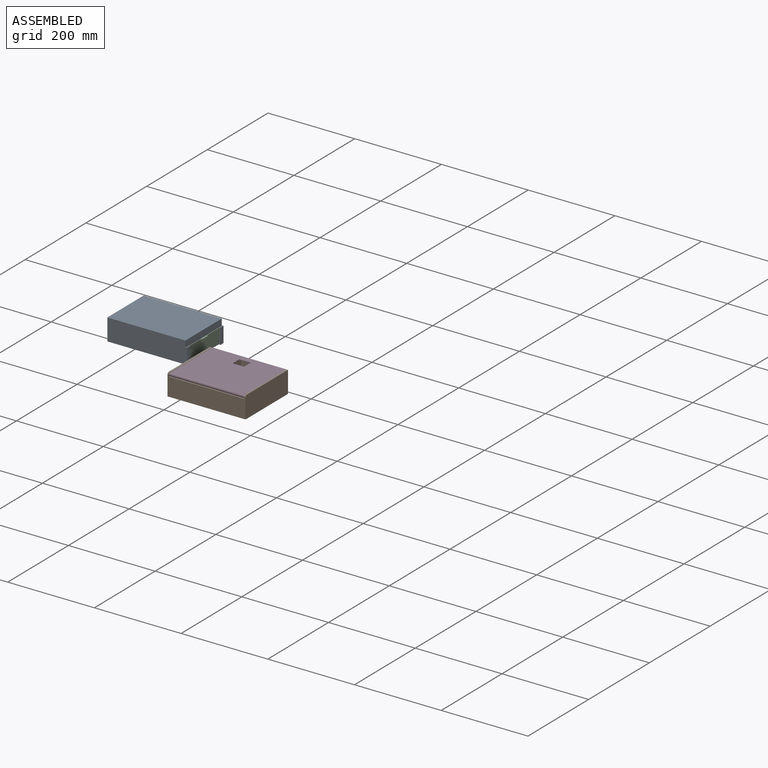
[diagram: assembled view]
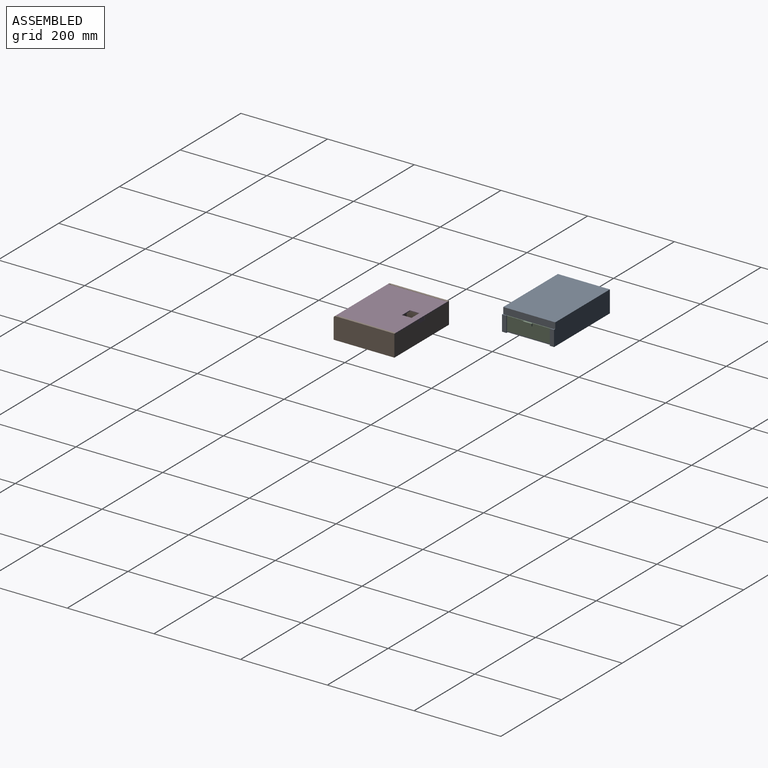
[diagram: assembled view, second angle]
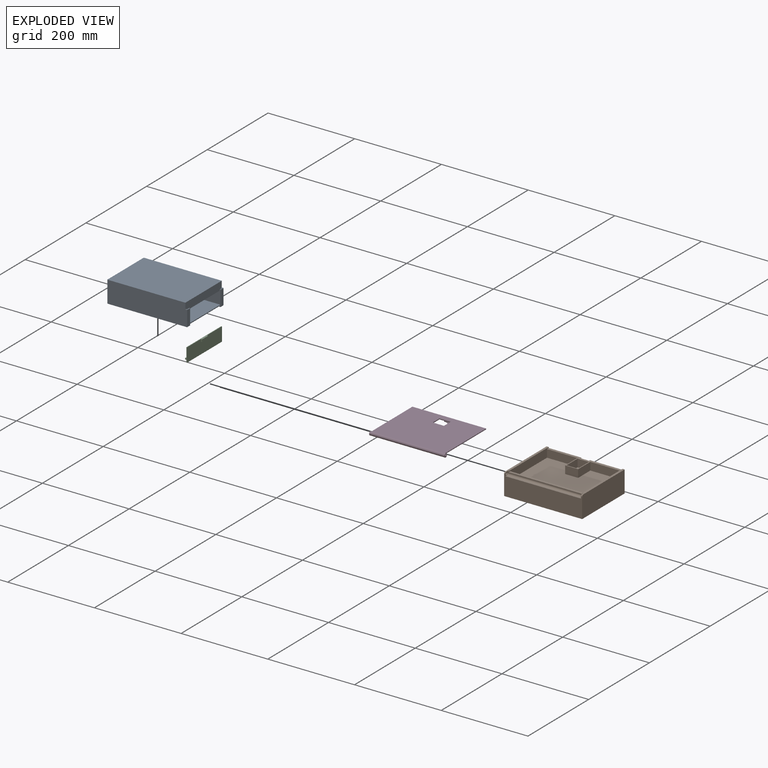
[diagram: exploded view]
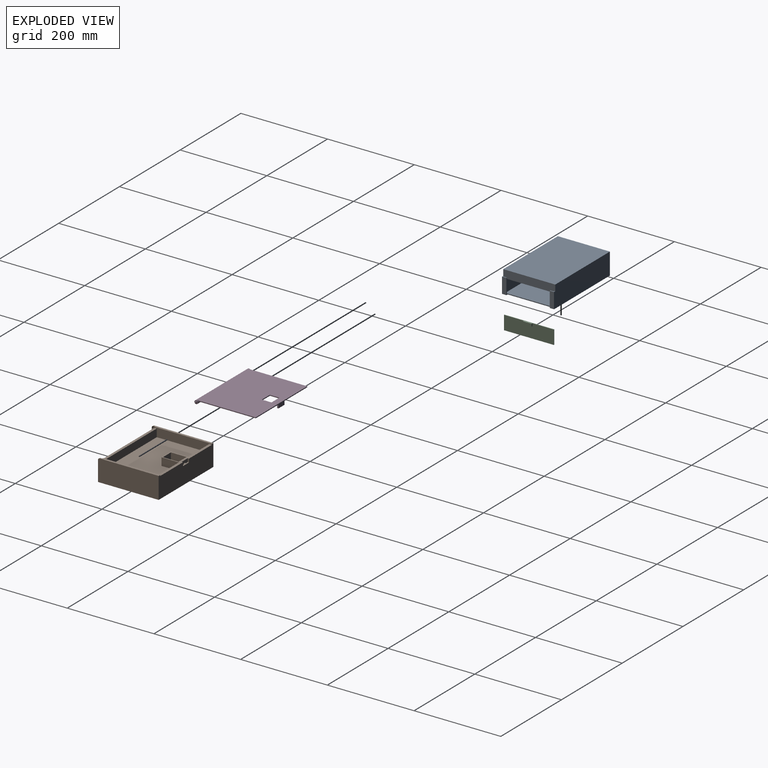
[diagram: exploded view, second angle]
ASSEMBLY  parts=4 mates=2
PART A: 23 faces, bbox 184x120x50 mm
  f0: plane 120x48mm, normal (1,0,0), area 2324mm2, adj f2,f5,f6,f7,f8,f9,f10,f12
  f1: plane 100x2mm, normal (1,0,0), area 200mm2, adj f4,f9,f14,f18
  f2: plane 180x120mm, normal (0,0,1), area 21600mm2, adj f0,f3,f5,f6
  f3: plane 120x50mm, normal (-1,0,0), area 6000mm2, adj f2,f4,f5,f6
  f4: plane 184x120mm, normal (0,0,-1), area 20772.1mm2, adj f1,f3,f5,f6,f14,f15,f17,f18
  f5: plane 184x50mm, normal (0,-1,0), area 9144mm2, adj f0,f2,f3,f4,f15,f16
  f6: plane 184x50mm, normal (0,1,0), area 9144mm2, adj f0,f2,f3,f4,f17,f21
  f7: plane 175x110mm, normal (0,0,-1), area 19250mm2, adj f0,f8,f10,f11
  f8: plane 175x30mm, normal (0,1,0), area 5250mm2, adj f0,f7,f9,f11
  f9: plane 177x116mm, normal (0,0,1), area 18374.1mm2, adj f0,f1,f8,f10,f11,f12,f13,f14
  f10: plane 175x30mm, normal (0,-1,0), area 5250mm2, adj f0,f7,f9,f11
  f11: plane 110x30mm, normal (1,0,0), area 3300mm2, adj f7,f8,f9,f10
  f12: plane 34x2mm, normal (0,1,0), area 68mm2, adj f0,f9,f13,f16
  f13: plane 34x8mm, normal (-1,0,0), area 272mm2, adj f9,f12,f14,f16
  f14: plane 36x4mm, normal (0,1,0), area 76mm2, adj f1,f4,f9,f13,f15,f16
  f15: plane 36x10mm, normal (1,0,0), area 360mm2, adj f4,f5,f14,f16
  f16: plane 10x4mm, normal (0,0,1), area 24mm2, adj f0,f5,f12,f13,f14,f15
  f17: plane 36x10mm, normal (1,0,0), area 360mm2, adj f4,f6,f18,f21
  f18: plane 36x4mm, normal (0,-1,0), area 76mm2, adj f1,f4,f9,f17,f19,f21
  f19: plane 34x8mm, normal (-1,0,0), area 272mm2, adj f9,f18,f20,f21
  f20: plane 34x2mm, normal (0,-1,0), area 68mm2, adj f0,f9,f19,f21
  f21: plane 10x4mm, normal (0,0,1), area 24mm2, adj f0,f6,f17,f18,f19,f20
  f22: cylinder r=17mm len=34mm, axis (0,0,-1), area 213.6mm2, adj f4,f9
PART B: 92 faces, bbox 180.4x141.9x51.9 mm
  f0: plane 170x46mm, normal (0,0,1), area 1224mm2, adj f1,f3,f10,f11,f12,f13,f29,f31
  f1: plane 70x18mm, normal (0,-1,0), area 1260mm2, adj f0,f2,f31,f84
  f2: plane 170x121mm, normal (0,0,1), area 19370mm2, adj f1,f3,f29,f30,f31,f84,f85,f86
  f3: plane 70x18mm, normal (0,-1,0), area 1260mm2, adj f0,f2,f29,f85
  f4: plane 25x1.5mm, normal (0,1,0), area 37.5mm2, adj f6,f39,f52,f79
  f5: plane 25x13mm, normal (1,0,0), area 325mm2, adj f6,f62,f77,f78
  f6: plane 180x140mm, normal (0,0,-1), area 19797.4mm2, adj f4,f5,f10,f17,f18,f19,f34,f35
  f7: plane 136x5mm, normal (0,0,1), area 672mm2, adj f8,f10,f15,f16,f19,f31
  f8: plane 174x4mm, normal (0,-1,0), area 356mm2, adj f7,f9,f15,f22,f24,f29,f31,f33
  f9: plane 136x5mm, normal (0,0,1), area 672mm2, adj f8,f10,f17,f20,f22,f29
  f10: plane 180x50mm, normal (0,1,0), area 8500mm2, adj f0,f6,f7,f9,f12,f13,f17,f19
  f11: plane 20x8mm, normal (0,1,0), area 148mm2, adj f0,f12,f13,f32,f80,f81,f82
  f12: plane 8x3mm, normal (1,0,0), area 24mm2, adj f0,f10,f11,f32
  f13: plane 8x3mm, normal (-1,0,0), area 24mm2, adj f0,f10,f11,f32
  f14: plane 4x4mm, normal (1,0,0), area 3.4mm2, adj f18,f21,f28
  f15: plane 4x4mm, normal (-1,0,0), area 3.4mm2, adj f7,f8,f27
  f16: cylinder r=4mm len=4mm, axis (-1,0,0), area 18.8mm2, adj f7,f18,f19,f27
  f17: plane 140x50mm, normal (-1,0,0), area 6996.6mm2, adj f6,f9,f10,f18,f20
  f18: plane 180x46mm, normal (0,-1,0), area 7584mm2, adj f6,f14,f16,f17,f19,f20,f21,f23
  f19: plane 140x50mm, normal (1,0,0), area 6996.6mm2, adj f6,f7,f10,f16,f18
  f20: cylinder r=4mm len=4mm, axis (-1,0,0), area 18.8mm2, adj f9,f17,f18,f28
  f21: plane 174x4mm, normal (0,0,1), area 696mm2, adj f14,f18,f23,f24
  f22: plane 4x4mm, normal (1,0,0), area 3.4mm2, adj f8,f9,f28
  f23: plane 4x4mm, normal (-1,0,0), area 3.4mm2, adj f18,f21,f27
  f24: cylinder r=4mm len=174mm, axis (1,0,0), area 1093.3mm2, adj f8,f21,f27,f28
  f25: plane 4x4mm, normal (1,0,0), area 12.6mm2, adj f28
  f26: plane 4x4mm, normal (-1,0,0), area 12.6mm2, adj f27
  f27: torus R=4mm, axis (1,0,0), area 53.8mm2, adj f15,f16,f23,f24,f26
  f28: torus R=4mm, axis (1,0,0), area 53.8mm2, adj f14,f20,f22,f24,f25
  f29: plane 132x20mm, normal (1,0,0), area 2442mm2, adj f0,f2,f3,f8,f9,f10,f30,f33
  f30: plane 170x18mm, normal (0,1,0), area 3060mm2, adj f2,f29,f31,f33
  f31: plane 132x20mm, normal (-1,0,0), area 2442mm2, adj f0,f1,f2,f7,f8,f10,f30,f33
  f32: plane 20x6mm, normal (0,0,1), area 78mm2, adj f10,f11,f12,f13,f80,f81,f83
  f33: plane 170x5mm, normal (0,0,1), area 850mm2, adj f8,f29,f30,f31
  f34: plane 63x25mm, normal (-1,0,0), area 1575mm2, adj f6,f35,f51,f52
  f35: cylinder r=2mm len=25mm, axis (0,0,-1), area 78.5mm2, adj f6,f34,f36,f52
  f36: plane 25x3mm, normal (0,-1,0), area 75mm2, adj f6,f35,f37,f52
  f37: cylinder r=2mm len=25mm, axis (0,0,-1), area 78.5mm2, adj f6,f36,f38,f52
  f38: plane 25x11mm, normal (-1,0,0), area 275mm2, adj f6,f37,f39,f52
  f39: cylinder r=2mm len=25mm, axis (0,0,-1), area 78.5mm2, adj f4,f6,f38,f52
  f40: plane 25x1.5mm, normal (0,1,0), area 37.5mm2, adj f6,f41,f52,f79
  f41: cylinder r=2mm len=25mm, axis (0,0,-1), area 78.5mm2, adj f6,f40,f42,f52
  f42: plane 25x11mm, normal (1,0,0), area 275mm2, adj f6,f41,f43,f52
  f43: cylinder r=2mm len=25mm, axis (0,0,-1), area 78.5mm2, adj f6,f42,f44,f52
  f44: plane 25x3mm, normal (0,-1,0), area 75mm2, adj f6,f43,f45,f52
  f45: cylinder r=2mm len=25mm, axis (0,0,-1), area 78.5mm2, adj f6,f44,f46,f52
  f46: plane 63x25mm, normal (1,0,0), area 1575mm2, adj f6,f45,f47,f52
  f47: cylinder r=11mm len=25mm, axis (0,0,-1), area 821.5mm2, adj f6,f46,f48,f52
  f48: cylinder r=2mm len=25mm, axis (0,0,-1), area 70.8mm2, adj f6,f47,f49,f52
  f49: plane 25x7.05mm, normal (0,1,0), area 176.4mm2, adj f6,f48,f50,f52
  f50: cylinder r=2mm len=25mm, axis (0,0,-1), area 83.5mm2, adj f6,f49,f51,f52
  f51: cylinder r=22mm len=43.89mm, axis (0,0,-1), area 1672.8mm2, adj f6,f34,f50,f52
  f52: plane 107x50.9mm, normal (0,0,-1), area 1727.5mm2, adj f4,f34,f35,f36,f37,f38,f39,f40
  f53: plane 25x21mm, normal (0,-1,0), area 525mm2, adj f6,f54,f76,f77
  f54: cylinder r=2mm len=25mm, axis (0,0,-1), area 78.5mm2, adj f6,f53,f55,f77
  f55: plane 25x3mm, normal (-1,0,0), area 75mm2, adj f6,f54,f56,f77
  f56: cylinder r=2mm len=25mm, axis (0,0,-1), area 78.5mm2, adj f6,f55,f57,f77
  f57: plane 25x21mm, normal (0,1,0), area 525mm2, adj f6,f56,f58,f77
  f58: cylinder r=2mm len=25mm, axis (0,0,-1), area 78.5mm2, adj f6,f57,f59,f77
  f59: plane 25x6mm, normal (-1,0,0), area 150mm2, adj f6,f58,f60,f77
  f60: cylinder r=2mm len=25mm, axis (0,0,-1), area 78.5mm2, adj f6,f59,f61,f77
  f61: plane 61x25mm, normal (0,1,0), area 1525mm2, adj f6,f60,f62,f77
  f62: cylinder r=2mm len=25mm, axis (0,0,-1), area 78.5mm2, adj f5,f6,f61,f77
  f63: plane 25x13mm, normal (1,0,0), area 325mm2, adj f6,f64,f77,f78
  f64: cylinder r=2mm len=25mm, axis (0,0,-1), area 78.5mm2, adj f6,f63,f65,f77
  f65: plane 61x25mm, normal (0,-1,0), area 1525mm2, adj f6,f64,f66,f77
  f66: cylinder r=2mm len=25mm, axis (0,0,-1), area 78.5mm2, adj f6,f65,f67,f77
  f67: plane 25x6mm, normal (-1,0,0), area 150mm2, adj f6,f66,f68,f77
  f68: cylinder r=2mm len=25mm, axis (0,0,-1), area 78.5mm2, adj f6,f67,f69,f77
  f69: plane 25x21mm, normal (0,-1,0), area 525mm2, adj f6,f68,f70,f77
  f70: cylinder r=2mm len=25mm, axis (0,0,-1), area 78.5mm2, adj f6,f69,f71,f77
  f71: plane 25x3mm, normal (-1,0,0), area 75mm2, adj f6,f70,f72,f77
  f72: cylinder r=2mm len=25mm, axis (0,0,-1), area 78.5mm2, adj f6,f71,f73,f77
  f73: plane 25x21mm, normal (0,1,0), area 525mm2, adj f6,f72,f74,f77
  f74: cylinder r=2mm len=25mm, axis (0,0,-1), area 78.5mm2, adj f6,f73,f75,f77
  f75: plane 25x12mm, normal (-1,0,0), area 300mm2, adj f6,f74,f76,f77
  f76: cylinder r=2mm len=25mm, axis (0,0,-1), area 78.5mm2, adj f6,f53,f75,f77
  f77: plane 95x50mm, normal (0,0,-1), area 3675.1mm2, adj f5,f53,f54,f55,f56,f57,f58,f59
  f78: extruded ~25x20mm, area 605.5mm2, adj f5,f6,f63,f77
  f79: extruded ~25x18mm, area 561.1mm2, adj f4,f6,f40,f52
  f80: plane 3x2mm, normal (-1,0,0), area 6mm2, adj f11,f32,f82,f83
  f81: plane 3x2mm, normal (1,0,0), area 6mm2, adj f11,f32,f82,f83
  f82: plane 6x3mm, normal (0,0,-1), area 18mm2, adj f11,f80,f81,f83
  f83: plane 6x2mm, normal (0,1,0), area 12mm2, adj f32,f80,f81,f82
  f84: plane 40x18mm, normal (1,0,0), area 720mm2, adj f0,f1,f2,f86
  f85: plane 40x18mm, normal (-1,0,0), area 720mm2, adj f0,f2,f3,f86
  f86: plane 30x18mm, normal (0,-1,0), area 540mm2, adj f0,f2,f84,f85
  f87: plane 26x18mm, normal (0,1,0), area 468mm2, adj f0,f88,f90,f91
  f88: plane 36x18mm, normal (-1,0,0), area 648mm2, adj f0,f87,f89,f91
  f89: plane 26x18mm, normal (0,-1,0), area 468mm2, adj f0,f88,f90,f91
  f90: plane 36x18mm, normal (1,0,0), area 648mm2, adj f0,f87,f89,f91
  f91: plane 36x26mm, normal (0,0,1), area 936mm2, adj f87,f88,f89,f90
PART C: 18 faces, bbox 14.5x115x32 mm
  f0: plane 115x32mm, normal (-1,0,0), area 3620mm2, adj f1,f2,f4,f5,f10,f11,f12,f14
  f1: plane 32x1.5mm, normal (0,-1,0), area 48mm2, adj f0,f3,f4,f5
  f2: plane 32x1.5mm, normal (0,1,0), area 48mm2, adj f0,f3,f4,f5
  f3: plane 115x32mm, normal (1,0,0), area 3567.5mm2, adj f1,f2,f4,f5,f6,f7,f8
  f4: plane 115x4.5mm, normal (0,0,1), area 232.5mm2, adj f0,f1,f2,f3,f6,f8,f9
  f5: plane 115x11.5mm, normal (0,0,-1), area 372.5mm2, adj f0,f1,f2,f3,f10,f12,f13,f14
  f6: plane 5.62x3mm, normal (0,-1,0), area 16.9mm2, adj f3,f4,f7,f9
  f7: plane 20x3mm, normal (0,0,-1), area 60mm2, adj f3,f6,f8,f9
  f8: plane 5.62x3mm, normal (0,1,0), area 16.9mm2, adj f3,f4,f7,f9
  f9: plane 20x5.62mm, normal (1,0,0), area 112.5mm2, adj f4,f6,f7,f8
  f10: plane 10x3mm, normal (0,-1,0), area 30mm2, adj f0,f5,f11,f13
  f11: plane 10x10mm, normal (0,0,1), area 100mm2, adj f0,f10,f12,f13
  f12: plane 10x3mm, normal (0,1,0), area 30mm2, adj f0,f5,f11,f13
  f13: plane 10x3mm, normal (-1,0,0), area 30mm2, adj f5,f10,f11,f12
  f14: plane 10x3mm, normal (0,-1,0), area 30mm2, adj f0,f5,f15,f17
  f15: plane 10x10mm, normal (0,0,1), area 100mm2, adj f0,f14,f16,f17
  f16: plane 10x3mm, normal (0,1,0), area 30mm2, adj f0,f5,f15,f17
  f17: plane 10x3mm, normal (-1,0,0), area 30mm2, adj f5,f14,f15,f16
PART D: 26 faces, bbox 178x140x10 mm
  f0: plane 170x132.54mm, normal (0,0,-1), area 21899.1mm2, adj f2,f3,f4,f5,f7,f8,f9,f22
  f1: plane 170x136mm, normal (0,0,1), area 22548mm2, adj f2,f3,f4,f9,f22,f23,f24,f25
  f2: plane 170x10mm, normal (0,1,0), area 500mm2, adj f0,f1,f3,f4,f6,f7,f8
  f3: plane 136x2mm, normal (-1,0,0), area 267.1mm2, adj f0,f1,f2,f9
  f4: plane 136x2mm, normal (1,0,0), area 267.1mm2, adj f0,f1,f2,f9
  f5: plane 20x8mm, normal (0,-1,0), area 155mm2, adj f0,f6,f7,f8,f18,f19,f20
  f6: plane 20x5mm, normal (0,0,-1), area 70mm2, adj f2,f5,f7,f8,f19,f20,f21
  f7: plane 8x3mm, normal (1,0,0), area 24mm2, adj f0,f2,f5,f6
  f8: plane 8x3mm, normal (-1,0,0), area 24mm2, adj f0,f2,f5,f6
  f9: cylinder r=4mm len=174mm, axis (-1,0,0), area 3661mm2, adj f0,f1,f3,f4,f10,f11
  f10: plane 8x8mm, normal (1,0,0), area 37.7mm2, adj f9,f12
  f11: plane 8x8mm, normal (-1,0,0), area 37.7mm2, adj f9,f15
  f12: cylinder r=2mm len=4mm, axis (-1,0,0), area 6.3mm2, adj f10,f14
  f13: plane 1x1mm, normal (1,0,0), area 0.8mm2, adj f14
  f14: torus R=0.5mm, axis (1,0,0), area 21.5mm2, adj f12,f13
  f15: cylinder r=2mm len=4mm, axis (1,0,0), area 6.3mm2, adj f11,f17
  f16: plane 1x1mm, normal (-1,0,0), area 0.8mm2, adj f17
  f17: torus R=0.5mm, axis (-1,0,0), area 21.5mm2, adj f15,f16
  f18: plane 5x2mm, normal (0,0,1), area 10mm2, adj f5,f19,f20,f21
  f19: plane 2x1mm, normal (-1,0,0), area 2mm2, adj f5,f6,f18,f21
  f20: plane 2x1mm, normal (1,0,0), area 2mm2, adj f5,f6,f18,f21
  f21: plane 5x1mm, normal (0,-1,0), area 5mm2, adj f6,f18,f19,f20
  f22: plane 26x2mm, normal (0,-1,0), area 52mm2, adj f0,f1,f23,f25
  f23: plane 22x2mm, normal (1,0,0), area 44mm2, adj f0,f1,f22,f24
  f24: plane 26x2mm, normal (0,1,0), area 52mm2, adj f0,f1,f23,f25
  f25: plane 22x2mm, normal (-1,0,0), area 44mm2, adj f0,f1,f22,f24
PLACE A t=(44.02,-165.38,-62.16)mm
PLACE B t=(314.33,-352.56,-27.21)mm
PLACE C t=(-11.92,-166.74,-59.16)mm
PLACE D t=(314.83,-346.06,-59.21)mm
MATE slider A.f20 <-> C.f2  axis (0,-1,0) through (128.42,-107.38,-42.96)mm
MATE revolute D.f9 <-> B.f16  axis (-1,0,0) through (227.33,-418.56,18.79)mm
